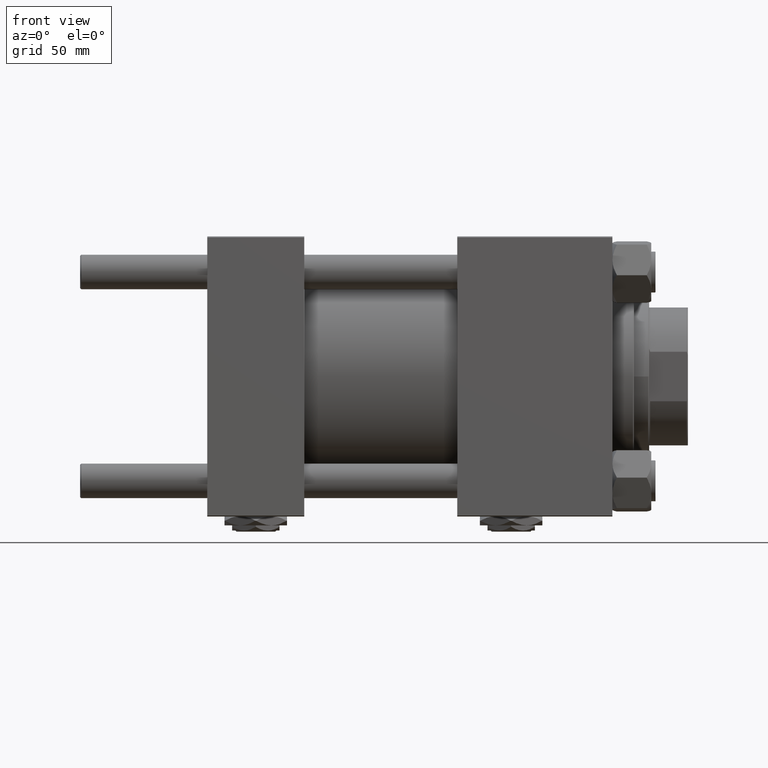
[diagram: clean part render]
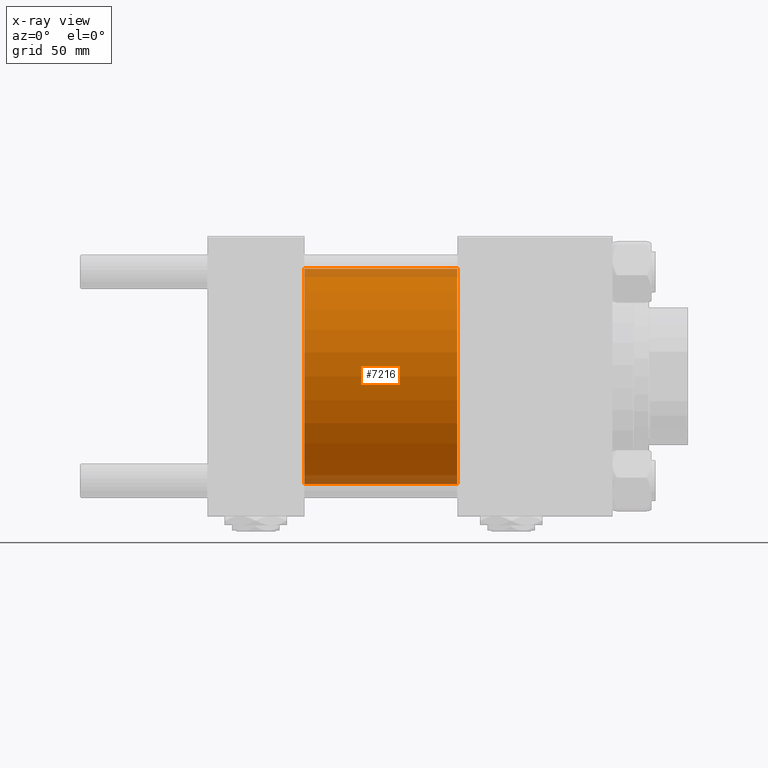
[diagram: x-ray — body ghosted, one internal face saturated and labeled with its STEP entity id]
A machine part, front view, then the same camera in x-ray: the body is ghosted and one INTERNAL B-rep face — a face not visible from any outside direction — is saturated and labeled: STEP entity #7216.
In plain terms, the highlighted cylindrical surface (partial cylindrical patch) has radius 50 mm, axis along (-1, -0, -0).
Its self-contained STEP definition (entity closure, byte-faithful):
#427 = AXIS2_PLACEMENT_3D ( 'NONE', #23370, #23893, #47535 ) ;
#2190 = DIRECTION ( 'NONE',  ( 0.000000000000000000, 0.000000000000000000, -1.000000000000000000 ) ) ;
#4947 = CARTESIAN_POINT ( 'NONE',  ( 45.00000000000000000, 6.123233995736766085E-15, -50.00000000000000000 ) ) ;
#4963 = VECTOR ( 'NONE', #48853, 1000.000000000000000 ) ;
#7216 = ADVANCED_FACE ( 'NONE', ( #14900 ), #40349, .F. ) ;
#11837 = CARTESIAN_POINT ( 'NONE',  ( 115.9999999999999858, 6.123233995736766085E-15, -50.00000000000000000 ) ) ;
#13218 = ORIENTED_EDGE ( 'NONE', *, *, #50336, .F. ) ;
#14840 = VECTOR ( 'NONE', #16091, 1000.000000000000000 ) ;
#14900 = FACE_OUTER_BOUND ( 'NONE', #48036, .T. ) ;
#15972 = VERTEX_POINT ( 'NONE', #4947 ) ;
#16091 = DIRECTION ( 'NONE',  ( -1.000000000000000000, -0.000000000000000000, -0.000000000000000000 ) ) ;
#16486 = LINE ( 'NONE', #36381, #4963 ) ;
#16674 = CARTESIAN_POINT ( 'NONE',  ( 45.00000000000000000, 0.000000000000000000, 50.00000000000000000 ) ) ;
#23370 = CARTESIAN_POINT ( 'NONE',  ( 115.9999999999999858, 0.000000000000000000, 0.000000000000000000 ) ) ;
#23893 = DIRECTION ( 'NONE',  ( -1.000000000000000000, -0.000000000000000000, -0.000000000000000000 ) ) ;
#24816 = VERTEX_POINT ( 'NONE', #16674 ) ;
#25110 = EDGE_CURVE ( 'NONE', #49963, #15972, #31736, .T. ) ;
#25913 = ORIENTED_EDGE ( 'NONE', *, *, #30421, .F. ) ;
#29446 = CIRCLE ( 'NONE', #40481, 50.00000000000000000 ) ;
#29890 = CARTESIAN_POINT ( 'NONE',  ( 115.9999999999999858, 6.123233995736766085E-15, -50.00000000000000000 ) ) ;
#30308 = DIRECTION ( 'NONE',  ( 1.000000000000000000, 0.000000000000000000, 0.000000000000000000 ) ) ;
#30421 = EDGE_CURVE ( 'NONE', #24816, #15972, #44702, .T. ) ;
#31387 = EDGE_CURVE ( 'NONE', #44455, #49963, #29446, .T. ) ;
#31736 = LINE ( 'NONE', #11837, #14840 ) ;
#33191 = ORIENTED_EDGE ( 'NONE', *, *, #25110, .T. ) ;
#35338 = CARTESIAN_POINT ( 'NONE',  ( 115.9999999999999858, 0.000000000000000000, 0.000000000000000000 ) ) ;
#36381 = CARTESIAN_POINT ( 'NONE',  ( 115.9999999999999858, 0.000000000000000000, 50.00000000000000000 ) ) ;
#40349 = CYLINDRICAL_SURFACE ( 'NONE', #427, 50.00000000000000000 ) ;
#40481 = AXIS2_PLACEMENT_3D ( 'NONE', #35338, #43565, #51528 ) ;
#43565 = DIRECTION ( 'NONE',  ( 1.000000000000000000, 0.000000000000000000, 0.000000000000000000 ) ) ;
#44455 = VERTEX_POINT ( 'NONE', #49510 ) ;
#44702 = CIRCLE ( 'NONE', #48935, 50.00000000000000000 ) ;
#44770 = ORIENTED_EDGE ( 'NONE', *, *, #31387, .T. ) ;
#46261 = CARTESIAN_POINT ( 'NONE',  ( 45.00000000000000000, 0.000000000000000000, 0.000000000000000000 ) ) ;
#47535 = DIRECTION ( 'NONE',  ( 0.000000000000000000, 0.000000000000000000, 1.000000000000000000 ) ) ;
#48036 = EDGE_LOOP ( 'NONE', ( #44770, #33191, #25913, #13218 ) ) ;
#48853 = DIRECTION ( 'NONE',  ( -1.000000000000000000, -0.000000000000000000, -0.000000000000000000 ) ) ;
#48935 = AXIS2_PLACEMENT_3D ( 'NONE', #46261, #30308, #2190 ) ;
#49510 = CARTESIAN_POINT ( 'NONE',  ( 115.9999999999999858, 0.000000000000000000, 50.00000000000000000 ) ) ;
#49963 = VERTEX_POINT ( 'NONE', #29890 ) ;
#50336 = EDGE_CURVE ( 'NONE', #44455, #24816, #16486, .T. ) ;
#51528 = DIRECTION ( 'NONE',  ( 0.000000000000000000, 0.000000000000000000, -1.000000000000000000 ) ) ;